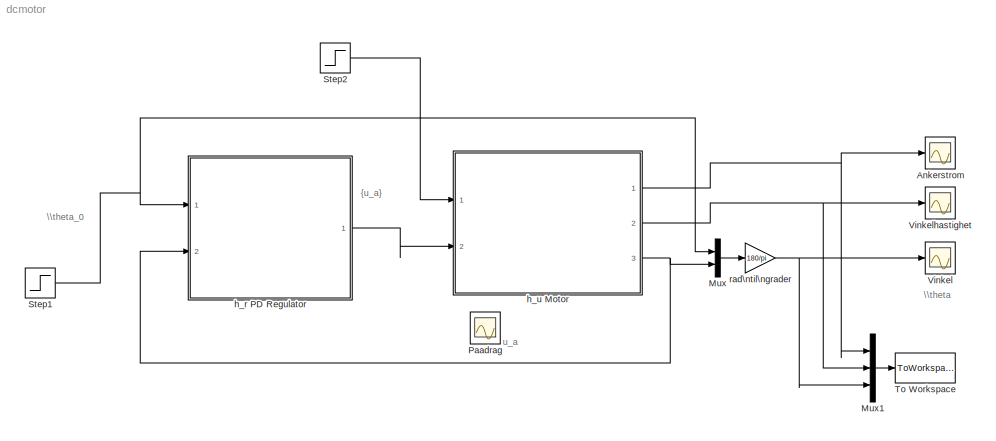
MODEL dcmotor
KIND model
BLOCK [Scope] Ankerstrom
  NumInputPorts = 1
  Ports = [1]
  SID = 1
  ScopeSpecificationString = C++SS(StrPVP('Location','[188, 390, 512, 629]'),StrPVP('Open','off'),StrPVP('ZoomMode','xonly'),MxPVP('AxesTitles',53,'struct(''axes1'',''%<SignalLabel>'')'),StrPVP('SaveToWorkspace','on'),StrPVP('SaveName','im'),StrPVP('DataFormat','StructureWithTime'),StrPVP('LimitDataPoints','off'),StrPVP('BlockParamSampleTime','0'),StrPVP('Decimation','1'),StrPVP('BlockParamSampleInput','off'))
BLOCK [Mux] Mux
  DisplayOption = bar
  Inputs = 2
  Ports = [2, 1]
  SID = 2
BLOCK [Mux] Mux1
  DisplayOption = bar
  Inputs = 3
  Ports = [3, 1]
  SID = 56
BLOCK [Scope] Paadrag
  NumInputPorts = 1
  Ports = [1]
  SID = 3
  ScopeSpecificationString = C++SS(StrPVP('Location','[1107, 260, 1431, 499]'),StrPVP('Open','off'),StrPVP('ZoomMode','xonly'),MxPVP('AxesTitles',53,'struct(''axes1'',''%<SignalLabel>'')'),MxPVP('ScopeGraphics',56,'struct(''FigureColor'',''[0.5 0.5 0.5]'',''AxesColor'',''[0 0 0]'',''AxesTickColor'',''[1 1 1]'',''LineColors'',''[1 1 0;1 0 1;0 1 1;1 0 0;0 1 0;0 0 1]'',''LineStyles'',''-|-|-|-|-|-'',''LineWidths'',''[0.5 0.5 0.5...<+273ch>
BLOCK [Step] Step1
  SID = 4
  SampleTime = 0
  Time = 0
BLOCK [Step] Step2
  SID = 59
  SampleTime = 0
  Time = 0
BLOCK [ToWorkspace] To Workspace
  FixptAsFi = on
  MaxDataPoints = inf
  Ports = [1]
  SID = 55
  SampleTime = -1
  Save2DSignal = 3-D array (concatenate along third dimension)
  SaveFormat = Structure With Time
  VariableName = motor_data
BLOCK [Scope] Vinkel
  NumInputPorts = 1
  Ports = [1]
  SID = 5
  ScopeSpecificationString = C++SS(StrPVP('Location','[117, 460, 802, 795]'),StrPVP('Open','off'),StrPVP('ZoomMode','xonly'),MxPVP('AxesTitles',53,'struct(''axes1'',''%<SignalLabel>'')'),MxPVP('ScopeGraphics',56,'struct(''FigureColor'',''[0.5 0.5 0.5]'',''AxesColor'',''[0 0 0]'',''AxesTickColor'',''[1 1 1]'',''LineColors'',''[1 1 0;1 0 1;0 1 1;1 0 0;0 1 0;0 0 1]'',''LineStyles'',''-|-|-|-|-|-'',''LineWidths'',''[0.5 0.5 0.5 0...<+362ch>
BLOCK [Scope] Vinkelhastighet
  NumInputPorts = 1
  Ports = [1]
  SID = 6
  ScopeSpecificationString = C++SS(StrPVP('Location','[188, 390, 512, 629]'),StrPVP('Open','off'),MxPVP('AxesTitles',53,'struct(''axes1'',''%<SignalLabel>'')'),MxPVP('ScopeGraphics',56,'struct(''FigureColor'',''[0.5 0.5 0.5]'',''AxesColor'',''[0 0 0]'',''AxesTickColor'',''[1 1 1]'',''LineColors'',''[1 1 0;1 0 1;0 1 1;1 0 0;0 1 0;0 0 1]'',''LineStyles'',''-|-|-|-|-|-'',''LineWidths'',''[0.5 0.5 0.5 0.5 0.5 0.5]'',''MarkerStyle...<+354ch>
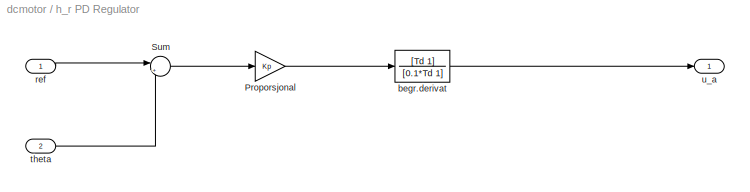
BLOCK [SubSystem] h_r PD Regulator
  Ports = [2, 1]
  RequestExecContextInheritance = off
  SID = 76
  Variant = off
BLOCK [Gain] h_r PD Regulator/Proporsjonal
  Gain = Kp
  OutDataTypeStr = Inherit: Inherit via internal rule
  ParamDataTypeStr = Inherit: Inherit via internal rule
  SID = 79
  SaturateOnIntegerOverflow = off
BLOCK [Sum] h_r PD Regulator/Sum
  IconShape = round
  InputSameDT = off
  Inputs = |+-
  OutDataTypeStr = Inherit: Inherit via internal rule
  Ports = [2, 1]
  SID = 80
  SaturateOnIntegerOverflow = off
BLOCK [TransferFcn] h_r PD Regulator/begr.derivat
  Denominator = [0.1*Td 1]
  Numerator = [Td 1]
  SID = 81
BLOCK [Inport] h_r PD Regulator/ref
  IconDisplay = Port number
  SID = 77
BLOCK [Inport] h_r PD Regulator/theta
  IconDisplay = Port number
  Port = 2
  SID = 78
BLOCK [Outport] h_r PD Regulator/u_a
  IconDisplay = Port number
  SID = 82
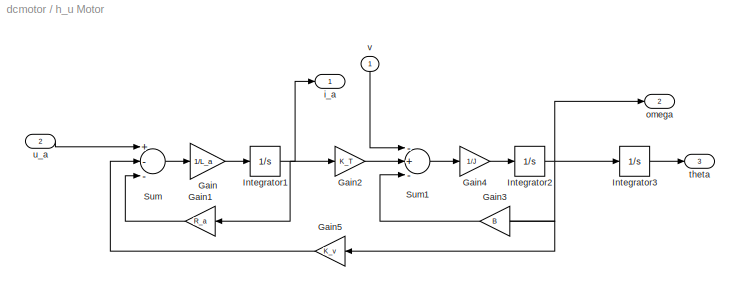
BLOCK [SubSystem] h_u Motor
  Ports = [2, 3]
  RequestExecContextInheritance = off
  SID = 13
  Variant = off
BLOCK [Gain] h_u Motor/Gain
  Gain = 1/L_a
  SID = 16
BLOCK [Gain] h_u Motor/Gain1
  Gain = R_a
  SID = 17
BLOCK [Gain] h_u Motor/Gain2
  Gain = K_T
  SID = 18
BLOCK [Gain] h_u Motor/Gain3
  Gain = B
  SID = 19
BLOCK [Gain] h_u Motor/Gain4
  Gain = 1/J
  SID = 20
BLOCK [Gain] h_u Motor/Gain5
  Gain = K_v
  SID = 21
BLOCK [Integrator] h_u Motor/Integrator1
  LowerSaturationLimit = -4
  Ports = [1, 1]
  SID = 22
  UpperSaturationLimit = 4
BLOCK [Integrator] h_u Motor/Integrator2
  Ports = [1, 1]
  SID = 23
BLOCK [Integrator] h_u Motor/Integrator3
  Ports = [1, 1]
  SID = 24
BLOCK [Sum] h_u Motor/Sum
  Inputs = +--
  Ports = [3, 1]
  SID = 25
BLOCK [Sum] h_u Motor/Sum1
  Inputs = -+-
  Ports = [3, 1]
  SID = 26
BLOCK [Outport] h_u Motor/i_a
  IconDisplay = Port number
  InitialOutput = 0
  SID = 27
BLOCK [Outport] h_u Motor/omega
  IconDisplay = Port number
  InitialOutput = 0
  Port = 2
  SID = 28
BLOCK [Outport] h_u Motor/theta
  IconDisplay = Port number
  InitialOutput = 0
  Port = 3
  SID = 29
BLOCK [Inport] h_u Motor/u_a
  IconDisplay = Port number
  Port = 2
  SID = 15
BLOCK [Inport] h_u Motor/v
  IconDisplay = Port number
  SID = 14
BLOCK [Gain] rad\ntil\ngrader
  Gain = 180/pi
  OutDataTypeStr = Inherit: Inherit via internal rule
  ParamDataTypeStr = Inherit: Inherit via internal rule
  SID = 30
  SaturateOnIntegerOverflow = off
ANNOTATION (root): \\theta
ANNOTATION (root): \\theta_0
ANNOTATION (root): u_a
ANNOTATION (root): {u_a}
LINE Mux1:1 -> To Workspace:1
LINE Mux:1 -> rad\ntil\ngrader:1
NET Step1:1 -> Mux:1, h_r PD Regulator:1
LINE Step2:1 -> h_u Motor:1
LINE h_r PD Regulator/Proporsjonal:1 -> h_r PD Regulator/begr.derivat:1
LINE h_r PD Regulator/Sum:1 -> h_r PD Regulator/Proporsjonal:1
LINE h_r PD Regulator/begr.derivat:1 -> h_r PD Regulator/u_a:1
LINE h_r PD Regulator/ref:1 -> h_r PD Regulator/Sum:1
LINE h_r PD Regulator/theta:1 -> h_r PD Regulator/Sum:2
LINE h_r PD Regulator:1 -> h_u Motor:2
LINE h_u Motor/Gain1:1 -> h_u Motor/Sum:3
LINE h_u Motor/Gain2:1 -> h_u Motor/Sum1:2
LINE h_u Motor/Gain3:1 -> h_u Motor/Sum1:3
LINE h_u Motor/Gain4:1 -> h_u Motor/Integrator2:1
LINE h_u Motor/Gain5:1 -> h_u Motor/Sum:2
LINE h_u Motor/Gain:1 -> h_u Motor/Integrator1:1
NET h_u Motor/Integrator1:1 -> h_u Motor/Gain1:1, h_u Motor/Gain2:1, h_u Motor/i_a:1
NET h_u Motor/Integrator2:1 -> h_u Motor/Gain3:1, h_u Motor/Gain5:1, h_u Motor/Integrator3:1, h_u Motor/omega:1
LINE h_u Motor/Integrator3:1 -> h_u Motor/theta:1
LINE h_u Motor/Sum1:1 -> h_u Motor/Gain4:1
LINE h_u Motor/Sum:1 -> h_u Motor/Gain:1
LINE h_u Motor/u_a:1 -> h_u Motor/Sum:1
LINE h_u Motor/v:1 -> h_u Motor/Sum1:1
NET h_u Motor:1 -> Ankerstrom:1, Mux1:1
NET h_u Motor:2 -> Mux1:2, Vinkelhastighet:1
NET h_u Motor:3 -> Mux:2, h_r PD Regulator:2
NET rad\ntil\ngrader:1 -> Mux1:3, Vinkel:1
note: NET lines group one-source signal fan-out (src -> all destinations, sorted); 1:1 wires keep LINE
